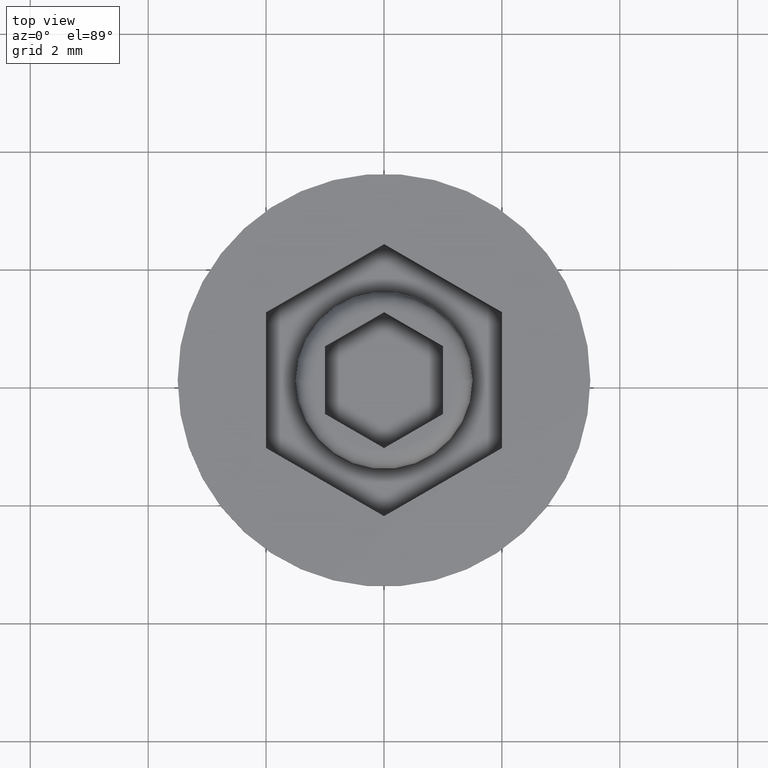
[diagram: clean part render]
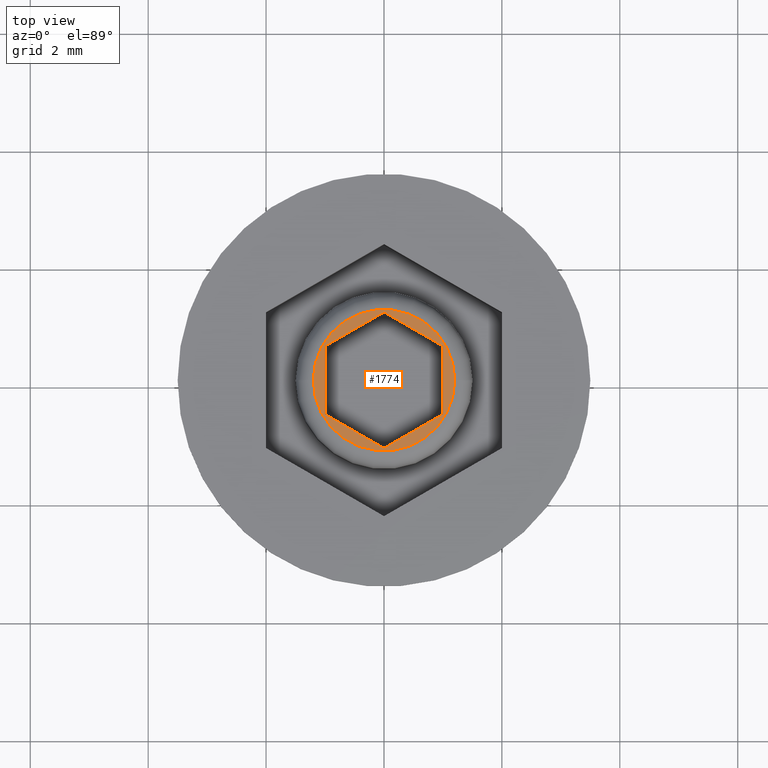
[diagram: same view with one face highlighted and labeled with its STEP entity id]
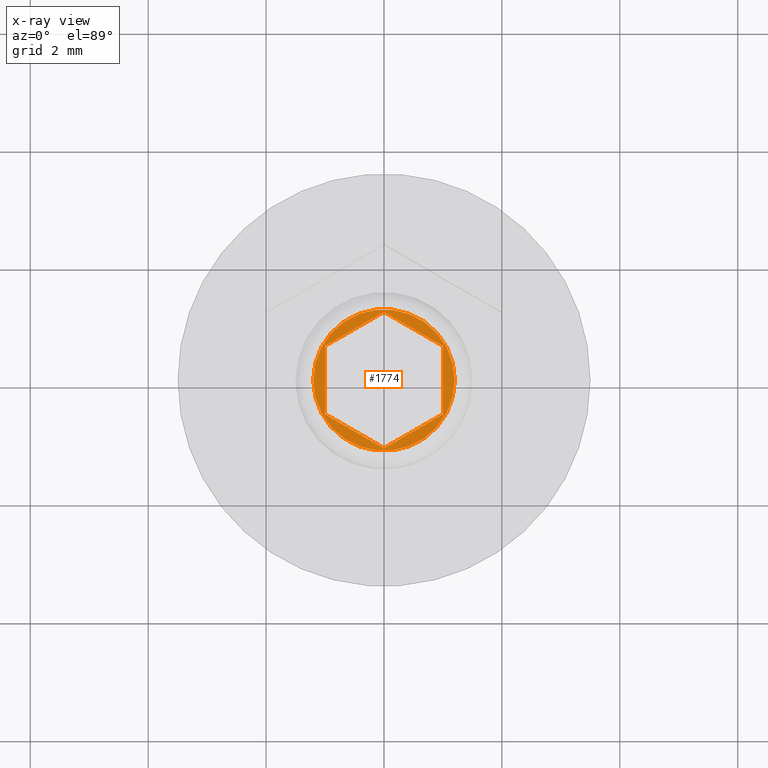
[diagram: x-ray of the same camera — body ghosted, the highlighted face saturated]
A machine part, top view. The second image highlights one B-rep face of the part: STEP entity #1774.
The next image is the same camera in x-ray: the body ghosted, the highlighted face saturated — about 0% of this face is hidden behind the body in this view.
In plain terms, the highlighted planar face has unit normal (0, -0, 1).
Its self-contained STEP definition (entity closure, byte-faithful):
#1 = VECTOR ( 'NONE', #1709, 1000.000000000000114 ) ;
#53 = LINE ( 'NONE', #1592, #606 ) ;
#61 = CIRCLE ( 'NONE', #1148, 1.200000000000000400 ) ;
#92 = VECTOR ( 'NONE', #305, 1000.000000000000114 ) ;
#96 = CARTESIAN_POINT ( 'NONE',  ( 0.000000000000000000, 0.000000000000000000, 0.000000000000000000 ) ) ;
#101 = VERTEX_POINT ( 'NONE', #1312 ) ;
#104 = DIRECTION ( 'NONE',  ( 0.000000000000000000, -0.000000000000000000, 1.000000000000000000 ) ) ;
#130 = LINE ( 'NONE', #1642, #609 ) ;
#177 = VERTEX_POINT ( 'NONE', #903 ) ;
#195 = VERTEX_POINT ( 'NONE', #1665 ) ;
#233 = DIRECTION ( 'NONE',  ( 1.000000000000000000, 0.000000000000000000, 0.000000000000000000 ) ) ;
#295 = LINE ( 'NONE', #849, #1 ) ;
#305 = DIRECTION ( 'NONE',  ( 0.8660254037844387076, 0.4999999999999997780, 0.000000000000000000 ) ) ;
#405 = EDGE_CURVE ( 'NONE', #712, #101, #1428, .T. ) ;
#422 = CARTESIAN_POINT ( 'NONE',  ( -1.000000000000000222, -0.5773502691896257311, 0.000000000000000000 ) ) ;
#451 = EDGE_CURVE ( 'NONE', #1071, #712, #295, .T. ) ;
#452 = ORIENTED_EDGE ( 'NONE', *, *, #1784, .F. ) ;
#485 = DIRECTION ( 'NONE',  ( 3.755786496842897578E-16, 1.000000000000000000, 0.000000000000000000 ) ) ;
#486 = CARTESIAN_POINT ( 'NONE',  ( -1.000000000000000222, 0.5773502691896259531, 0.000000000000000000 ) ) ;
#488 = EDGE_CURVE ( 'NONE', #766, #177, #53, .T. ) ;
#508 = FACE_OUTER_BOUND ( 'NONE', #673, .T. ) ;
#543 = DIRECTION ( 'NONE',  ( -0.000000000000000000, -0.000000000000000000, 1.000000000000000000 ) ) ;
#559 = AXIS2_PLACEMENT_3D ( 'NONE', #96, #104, #233 ) ;
#572 = LINE ( 'NONE', #688, #92 ) ;
#581 = DIRECTION ( 'NONE',  ( -0.8660254037844387076, -0.4999999999999998335, 0.000000000000000000 ) ) ;
#599 = ORIENTED_EDGE ( 'NONE', *, *, #1347, .T. ) ;
#606 = VECTOR ( 'NONE', #623, 1000.000000000000114 ) ;
#609 = VECTOR ( 'NONE', #485, 1000.000000000000000 ) ;
#613 = CIRCLE ( 'NONE', #1718, 1.200000000000000400 ) ;
#623 = DIRECTION ( 'NONE',  ( 0.8660254037844385966, -0.4999999999999999445, 0.000000000000000000 ) ) ;
#673 = EDGE_LOOP ( 'NONE', ( #599, #855 ) ) ;
#688 = CARTESIAN_POINT ( 'NONE',  ( 0.000000000000000000, -1.154700538379251684, 0.000000000000000000 ) ) ;
#712 = VERTEX_POINT ( 'NONE', #1669 ) ;
#728 = ORIENTED_EDGE ( 'NONE', *, *, #488, .F. ) ;
#766 = VERTEX_POINT ( 'NONE', #422 ) ;
#797 = DIRECTION ( 'NONE',  ( 0.000000000000000000, -1.000000000000000000, 0.000000000000000000 ) ) ;
#805 = DIRECTION ( 'NONE',  ( 1.000000000000000000, 0.000000000000000000, 0.000000000000000000 ) ) ;
#849 = CARTESIAN_POINT ( 'NONE',  ( 1.000000000000000666, 0.5773502691896258421, 0.000000000000000000 ) ) ;
#855 = ORIENTED_EDGE ( 'NONE', *, *, #1579, .T. ) ;
#880 = VECTOR ( 'NONE', #797, 1000.000000000000000 ) ;
#892 = EDGE_CURVE ( 'NONE', #1255, #1071, #130, .T. ) ;
#903 = CARTESIAN_POINT ( 'NONE',  ( 0.000000000000000000, -1.154700538379251684, 0.000000000000000000 ) ) ;
#981 = CARTESIAN_POINT ( 'NONE',  ( 0.000000000000000000, 1.154700538379251684, 0.000000000000000000 ) ) ;
#982 = ORIENTED_EDGE ( 'NONE', *, *, #892, .F. ) ;
#985 = DIRECTION ( 'NONE',  ( 1.000000000000000000, 0.000000000000000000, 0.000000000000000000 ) ) ;
#1071 = VERTEX_POINT ( 'NONE', #1524 ) ;
#1129 = EDGE_LOOP ( 'NONE', ( #1609, #982, #1823, #728, #452, #1423 ) ) ;
#1148 = AXIS2_PLACEMENT_3D ( 'NONE', #1305, #1645, #805 ) ;
#1153 = VERTEX_POINT ( 'NONE', #1274 ) ;
#1203 = VECTOR ( 'NONE', #581, 1000.000000000000114 ) ;
#1220 = LINE ( 'NONE', #486, #880 ) ;
#1255 = VERTEX_POINT ( 'NONE', #1483 ) ;
#1274 = CARTESIAN_POINT ( 'NONE',  ( -1.200000000000000400, 1.653273178848927113E-16, 0.000000000000000000 ) ) ;
#1305 = CARTESIAN_POINT ( 'NONE',  ( 0.000000000000000000, 0.000000000000000000, 0.000000000000000000 ) ) ;
#1312 = CARTESIAN_POINT ( 'NONE',  ( -1.000000000000000222, 0.5773502691896259531, 0.000000000000000000 ) ) ;
#1347 = EDGE_CURVE ( 'NONE', #195, #1153, #61, .T. ) ;
#1423 = ORIENTED_EDGE ( 'NONE', *, *, #405, .F. ) ;
#1428 = LINE ( 'NONE', #981, #1203 ) ;
#1483 = CARTESIAN_POINT ( 'NONE',  ( 1.000000000000000222, -0.5773502691896260641, 0.000000000000000000 ) ) ;
#1490 = EDGE_CURVE ( 'NONE', #177, #1255, #572, .T. ) ;
#1511 = PLANE ( 'NONE',  #559 ) ;
#1524 = CARTESIAN_POINT ( 'NONE',  ( 1.000000000000000666, 0.5773502691896258421, 0.000000000000000000 ) ) ;
#1579 = EDGE_CURVE ( 'NONE', #1153, #195, #613, .T. ) ;
#1592 = CARTESIAN_POINT ( 'NONE',  ( -1.000000000000000222, -0.5773502691896257311, 0.000000000000000000 ) ) ;
#1609 = ORIENTED_EDGE ( 'NONE', *, *, #451, .F. ) ;
#1642 = CARTESIAN_POINT ( 'NONE',  ( 1.000000000000000222, -0.5773502691896260641, 0.000000000000000000 ) ) ;
#1643 = FACE_BOUND ( 'NONE', #1129, .T. ) ;
#1645 = DIRECTION ( 'NONE',  ( -0.000000000000000000, -0.000000000000000000, 1.000000000000000000 ) ) ;
#1665 = CARTESIAN_POINT ( 'NONE',  ( 1.200000000000000400, 0.000000000000000000, 0.000000000000000000 ) ) ;
#1669 = CARTESIAN_POINT ( 'NONE',  ( 1.084202172485504434E-16, 1.154700538379251684, 0.000000000000000000 ) ) ;
#1700 = CARTESIAN_POINT ( 'NONE',  ( 0.000000000000000000, 0.000000000000000000, 0.000000000000000000 ) ) ;
#1709 = DIRECTION ( 'NONE',  ( -0.8660254037844387076, 0.4999999999999997224, 0.000000000000000000 ) ) ;
#1718 = AXIS2_PLACEMENT_3D ( 'NONE', #1700, #543, #985 ) ;
#1774 = ADVANCED_FACE ( 'NONE', ( #508, #1643 ), #1511, .T. ) ;
#1784 = EDGE_CURVE ( 'NONE', #101, #766, #1220, .T. ) ;
#1823 = ORIENTED_EDGE ( 'NONE', *, *, #1490, .F. ) ;